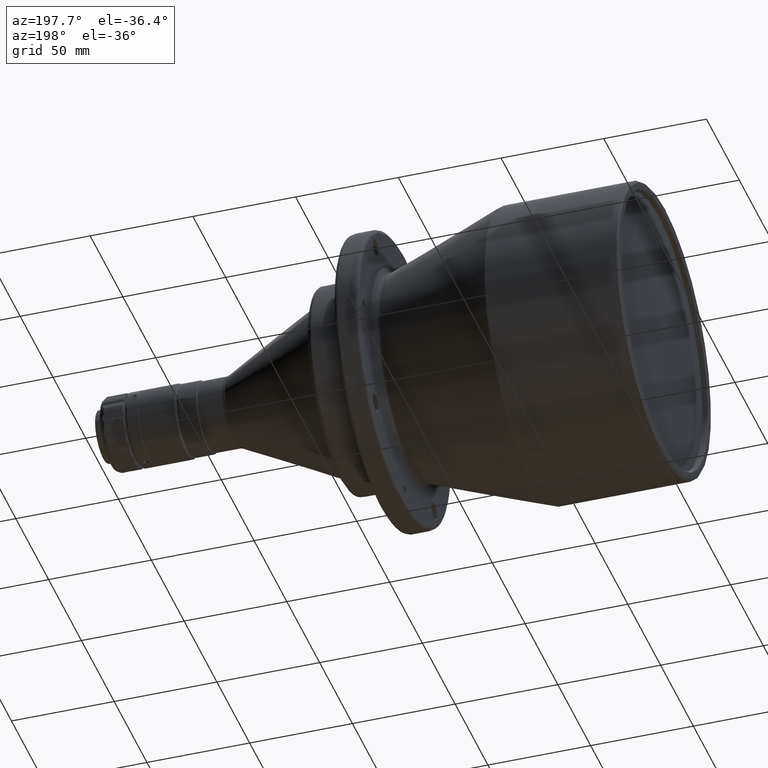
[diagram: clean part render]
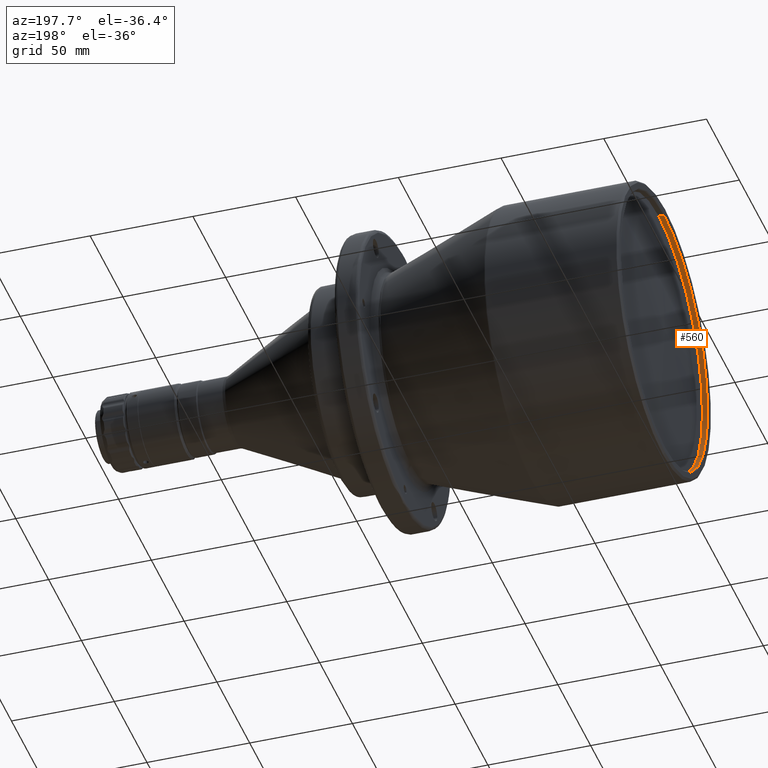
[diagram: same view with one face highlighted and labeled with its STEP entity id]
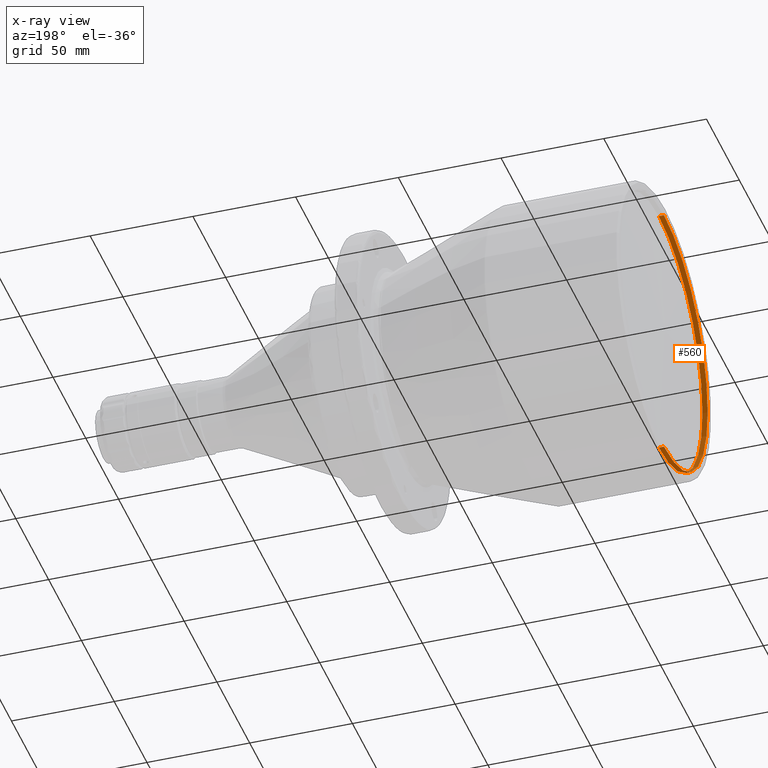
[diagram: x-ray of the same camera — body ghosted, the highlighted face saturated]
A machine part, auxiliary view. The second image highlights one B-rep face of the part: STEP entity #560.
The next image is the same camera in x-ray: the body ghosted, the highlighted face saturated — about 0% of this face is hidden behind the body in this view.
In plain terms, the highlighted cylindrical surface (partial cylindrical patch) has radius 66.65 mm, axis along (-1, 0, 0).
Its self-contained STEP definition (entity closure, byte-faithful):
#493 = ORIENTED_EDGE ( 'NONE', *, *, #1721, .T. ) ;
#560 = ADVANCED_FACE ( 'NONE', ( #6591 ), #1998, .F. ) ;
#677 = CARTESIAN_POINT ( 'NONE',  ( 0.5000000000000004400, 0.0000000000000000000, 0.0000000000000000000 ) ) ;
#757 = CARTESIAN_POINT ( 'NONE',  ( 3.021939799999984200, 0.0000000000000000000, 66.64999999999999100 ) ) ;
#782 = CIRCLE ( 'NONE', #6737, 66.64999999999999100 ) ;
#1066 = AXIS2_PLACEMENT_3D ( 'NONE', #677, #3325, #5433 ) ;
#1341 = VECTOR ( 'NONE', #2807, 1000.000000000000000 ) ;
#1667 = LINE ( 'NONE', #5954, #5650 ) ;
#1721 = EDGE_CURVE ( 'NONE', #6022, #3917, #3593, .T. ) ;
#1782 = CARTESIAN_POINT ( 'NONE',  ( 0.5000000000000004400, 8.192887086295790200E-015, -66.64999999999999100 ) ) ;
#1897 = ORIENTED_EDGE ( 'NONE', *, *, #6166, .F. ) ;
#1998 = CYLINDRICAL_SURFACE ( 'NONE', #5642, 66.64999999999999100 ) ;
#2062 = DIRECTION ( 'NONE',  ( -1.000000000000000000, 0.0000000000000000000, 0.0000000000000000000 ) ) ;
#2622 = CARTESIAN_POINT ( 'NONE',  ( 0.5000000000000000000, 0.0000000000000000000, 66.64999999999999100 ) ) ;
#2677 = CARTESIAN_POINT ( 'NONE',  ( 3.021939799999984200, 8.162270916317106500E-015, -66.64999999999999100 ) ) ;
#2745 = DIRECTION ( 'NONE',  ( -1.000000000000000000, 0.0000000000000000000, 0.0000000000000000000 ) ) ;
#2807 = DIRECTION ( 'NONE',  ( -1.000000000000000000, 0.0000000000000000000, 0.0000000000000000000 ) ) ;
#3002 = CARTESIAN_POINT ( 'NONE',  ( 3.021939799999984200, 0.0000000000000000000, 0.0000000000000000000 ) ) ;
#3201 = CARTESIAN_POINT ( 'NONE',  ( 3.021939800000000200, 0.0000000000000000000, 0.0000000000000000000 ) ) ;
#3293 = EDGE_CURVE ( 'NONE', #5914, #6022, #1667, .T. ) ;
#3325 = DIRECTION ( 'NONE',  ( -1.000000000000000000, 0.0000000000000000000, 0.0000000000000000000 ) ) ;
#3483 = DIRECTION ( 'NONE',  ( 1.000000000000000000, 0.0000000000000000000, 0.0000000000000000000 ) ) ;
#3593 = CIRCLE ( 'NONE', #1066, 66.64999999999999100 ) ;
#3917 = VERTEX_POINT ( 'NONE', #2622 ) ;
#4193 = LINE ( 'NONE', #4417, #1341 ) ;
#4417 = CARTESIAN_POINT ( 'NONE',  ( 3.021939800000000200, 0.0000000000000000000, 66.64999999999999100 ) ) ;
#4798 = VERTEX_POINT ( 'NONE', #757 ) ;
#5395 = EDGE_CURVE ( 'NONE', #4798, #5914, #782, .T. ) ;
#5433 = DIRECTION ( 'NONE',  ( -6.506839744849240000E-018, 0.0000000000000000000, 1.000000000000000000 ) ) ;
#5642 = AXIS2_PLACEMENT_3D ( 'NONE', #3201, #2062, #6339 ) ;
#5650 = VECTOR ( 'NONE', #2745, 1000.000000000000000 ) ;
#5751 = ORIENTED_EDGE ( 'NONE', *, *, #3293, .T. ) ;
#5914 = VERTEX_POINT ( 'NONE', #2677 ) ;
#5954 = CARTESIAN_POINT ( 'NONE',  ( 3.021939800000000200, 8.162270916317106500E-015, -66.64999999999999100 ) ) ;
#5976 = ORIENTED_EDGE ( 'NONE', *, *, #5395, .T. ) ;
#6022 = VERTEX_POINT ( 'NONE', #1782 ) ;
#6154 = DIRECTION ( 'NONE',  ( 2.407530705594218500E-016, 0.0000000000000000000, -1.000000000000000000 ) ) ;
#6166 = EDGE_CURVE ( 'NONE', #4798, #3917, #4193, .T. ) ;
#6339 = DIRECTION ( 'NONE',  ( 0.0000000000000000000, 0.0000000000000000000, 1.000000000000000000 ) ) ;
#6412 = EDGE_LOOP ( 'NONE', ( #5976, #5751, #493, #1897 ) ) ;
#6591 = FACE_OUTER_BOUND ( 'NONE', #6412, .T. ) ;
#6737 = AXIS2_PLACEMENT_3D ( 'NONE', #3002, #3483, #6154 ) ;